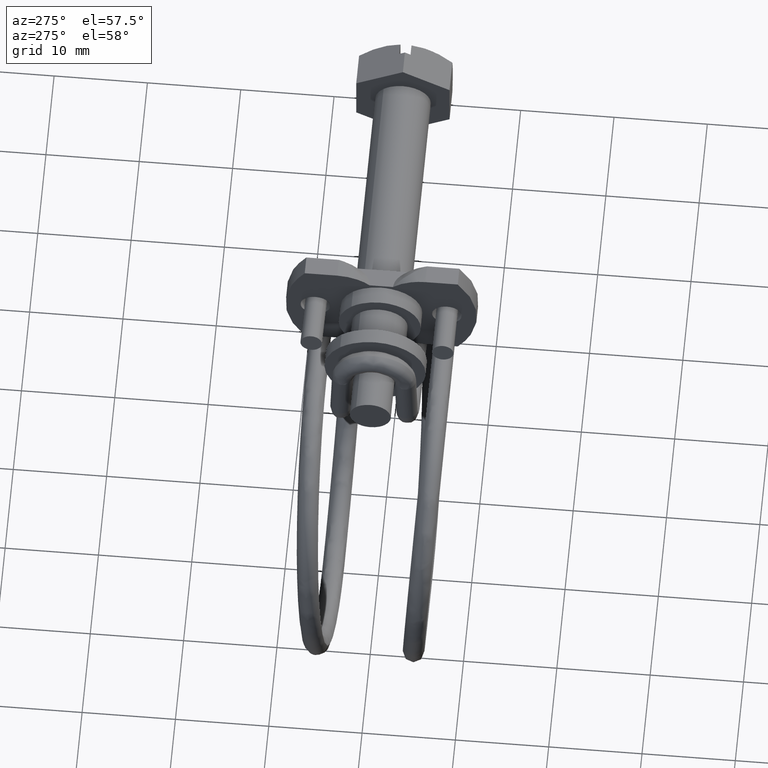
[diagram: clean part render]
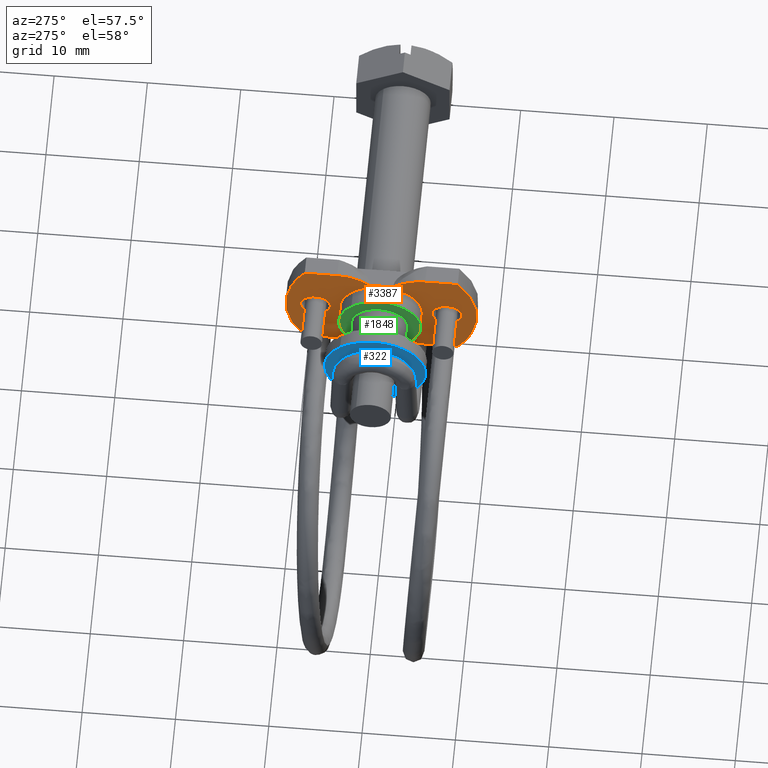
[diagram: same view with three faces highlighted in distinct colors, each labeled with its STEP entity id]
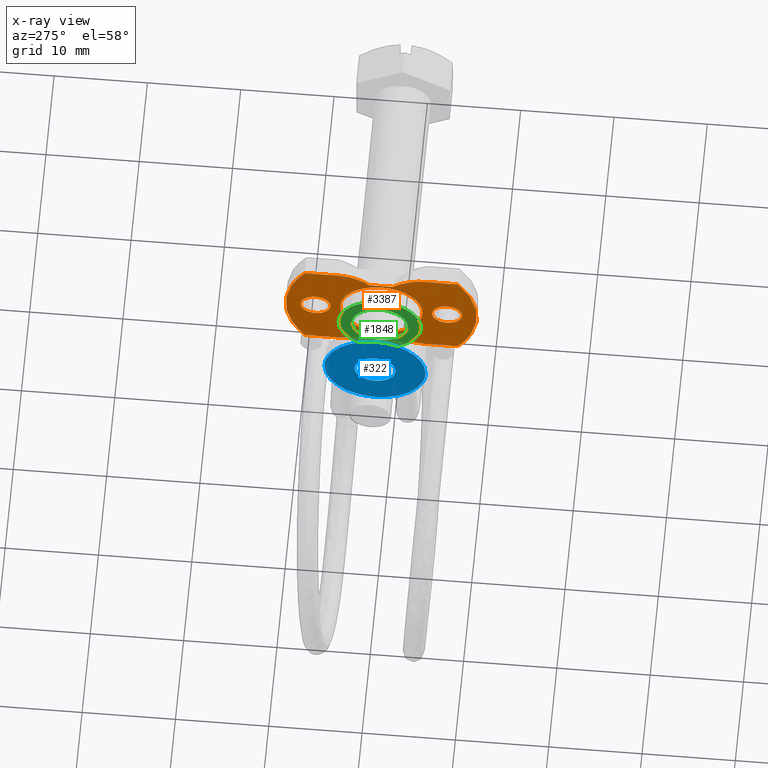
[diagram: x-ray of the same camera — body ghosted, the three highlighted faces saturated]
A machine part, auxiliary view with three faces highlighted in distinct colors.
The next image is the same camera in x-ray (body ghosted, the three faces saturated) — at least one of them is partly hidden behind the body in this view.
Their STEP definitions:

[orange] entity #3387 — the highlighted face is a freeform B-spline surface patch.
#1868=CARTESIAN_POINT('',(-26.500000000008800,3.028759986896684,3.191647047363896));
#1869=VERTEX_POINT('',#1868);
#1875=CARTESIAN_POINT('',(-26.500000000008800,4.399999999990085,-0.000000940716724));
#1876=VERTEX_POINT('',#1875);
#1877=CARTESIAN_POINT('',(-26.500000000008800,3.028759986896684,3.191647047363896));
#1878=CARTESIAN_POINT('',(-26.500000000008811,3.204151414757942,3.025224595690484));
#1879=CARTESIAN_POINT('',(-26.500000000008718,3.564721045001089,2.621630271139714));
#1880=CARTESIAN_POINT('',(-26.500000000008960,3.981661900450574,1.934350126121340));
#1881=CARTESIAN_POINT('',(-26.500000000008772,4.312724401888299,1.041459980738243));
#1882=CARTESIAN_POINT('',(-26.500000000008651,4.400124143302163,0.390585649696691));
#1883=CARTESIAN_POINT('',(-26.500000000008800,4.399999999990085,-0.000000940716724));
#1884=B_SPLINE_CURVE_WITH_KNOTS('',3,(#1877,#1878,#1879,#1880,#1881,#1882,#1883),.UNSPECIFIED.,.F.,.U.,(4,1,1,1,4),(7.585844E-009,0.725351343758357,1.618100974803747,2.399244141282850,3.570968398289390),.UNSPECIFIED.);
#1885=EDGE_CURVE('',#1869,#1876,#1884,.T.);
#1887=CARTESIAN_POINT('',(-26.500000000008800,0.0,-4.399999999990185));
#1888=VERTEX_POINT('',#1887);
#1889=CARTESIAN_POINT('',(-26.500000000008800,4.399999999990085,-0.000000940716724));
#1890=CARTESIAN_POINT('',(-26.500000000008789,4.400032899607744,-0.287978531308636));
#1891=CARTESIAN_POINT('',(-26.500000000008839,4.341502717032039,-0.881932274909092));
#1892=CARTESIAN_POINT('',(-26.500000000008701,4.094973365690760,-1.677038980686903));
#1893=CARTESIAN_POINT('',(-26.500000000009109,3.716334516122697,-2.395963267566721));
#1894=CARTESIAN_POINT('',(-26.500000000008530,3.241941320339942,-3.011617427590196));
#1895=CARTESIAN_POINT('',(-26.500000000008871,2.716716305281558,-3.481780025869578));
#1896=CARTESIAN_POINT('',(-26.500000000008860,2.144842142271191,-3.858840711950128));
#1897=CARTESIAN_POINT('',(-26.500000000008718,1.524276227019057,-4.152371354115200));
#1898=CARTESIAN_POINT('',(-26.500000000008821,0.773937966037745,-4.355048014883253));
#1899=CARTESIAN_POINT('',(-26.500000000008821,0.251980437455539,-4.400020239015968));
#1900=CARTESIAN_POINT('',(-26.500000000008800,0.0,-4.399999999990185));
#1901=B_SPLINE_CURVE_WITH_KNOTS('',3,(#1889,#1890,#1891,#1892,#1893,#1894,#1895,#1896,#1897,#1898,#1899,#1900),.UNSPECIFIED.,.F.,.U.,(4,1,1,1,1,1,1,1,1,4),(0.000000031501568,0.863935043934641,1.781883895370347,2.483846262426276,3.293801798742494,4.103717106462265,4.589694928662183,5.345649831704391,6.155603274940446,6.911546674428889),.UNSPECIFIED.);
#1902=EDGE_CURVE('',#1876,#1888,#1901,.T.);
#1904=CARTESIAN_POINT('',(-26.500000000008800,-3.028759986896684,-3.191647047363897));
#1905=VERTEX_POINT('',#1904);
#1906=CARTESIAN_POINT('',(-26.500000000008800,0.0,-4.399999999990185));
#1907=CARTESIAN_POINT('',(-26.500000000008878,-0.260982352438886,-4.400024897192285));
#1908=CARTESIAN_POINT('',(-26.500000000008729,-0.765542463454386,-4.354978884413694));
#1909=CARTESIAN_POINT('',(-26.500000000008811,-1.423371837625860,-4.179281684623490));
#1910=CARTESIAN_POINT('',(-26.500000000008821,-2.208911031023536,-3.844116367504733));
#1911=CARTESIAN_POINT('',(-26.500000000008800,-2.713370330592687,-3.491239243654235));
#1912=CARTESIAN_POINT('',(-26.500000000008800,-3.028759986896684,-3.191647047363897));
#1913=B_SPLINE_CURVE_WITH_KNOTS('',3,(#1906,#1907,#1908,#1909,#1910,#1911,#1912),.UNSPECIFIED.,.F.,.U.,(4,1,1,1,4),(8.890956E-009,0.782947716419980,1.513708507350673,2.035664010345408,3.340579707109564),.UNSPECIFIED.);
#1914=EDGE_CURVE('',#1888,#1905,#1913,.T.);
#1948=CARTESIAN_POINT('',(-26.500000000008800,-4.399999999990085,0.000000940716723));
#1949=VERTEX_POINT('',#1948);
#1950=CARTESIAN_POINT('',(-26.500000000008800,-3.028759986896684,-3.191647047363897));
#1951=CARTESIAN_POINT('',(-26.500000000008828,-3.258146499820522,-2.974040421692755));
#1952=CARTESIAN_POINT('',(-26.500000000008800,-3.657559027822259,-2.503341712511781));
#1953=CARTESIAN_POINT('',(-26.500000000008690,-4.110154460419578,-1.664179746439416));
#1954=CARTESIAN_POINT('',(-26.500000000009010,-4.352404806914691,-0.818347111734163));
#1955=CARTESIAN_POINT('',(-26.500000000008679,-4.400008357003995,-0.241779850724685));
#1956=CARTESIAN_POINT('',(-26.500000000008800,-4.399999999990085,0.000000940716723));
#1957=B_SPLINE_CURVE_WITH_KNOTS('',3,(#1950,#1951,#1952,#1953,#1954,#1955,#1956),.UNSPECIFIED.,.F.,.U.,(4,1,1,1,4),(7.585737E-009,0.948539171350616,1.841277262789608,2.845616922669429,3.570968398289389),.UNSPECIFIED.);
#1958=EDGE_CURVE('',#1905,#1949,#1957,.T.);
#1960=CARTESIAN_POINT('',(-26.500000000008800,0.0,4.399999999990185));
#1961=VERTEX_POINT('',#1960);
#1962=CARTESIAN_POINT('',(-26.500000000008800,-4.399999999990085,0.000000940716723));
#1963=CARTESIAN_POINT('',(-26.500000000008779,-4.400081568449895,0.359980380307322));
#1964=CARTESIAN_POINT('',(-26.500000000008828,-4.326700315468531,0.953897898677333));
#1965=CARTESIAN_POINT('',(-26.500000000008779,-4.090123385243371,1.655379898595582));
#1966=CARTESIAN_POINT('',(-26.500000000008789,-3.821392259133748,2.206002759256716));
#1967=CARTESIAN_POINT('',(-26.500000000008811,-3.463604558742270,2.748684541794785));
#1968=CARTESIAN_POINT('',(-26.500000000008871,-2.968284426143807,3.275356316320415));
#1969=CARTESIAN_POINT('',(-26.500000000008772,-2.321963479209609,3.767141578125984));
#1970=CARTESIAN_POINT('',(-26.500000000008811,-1.642616899172623,4.109111446655018));
#1971=CARTESIAN_POINT('',(-26.500000000008800,-0.827916810864837,4.345314038121160));
#1972=CARTESIAN_POINT('',(-26.500000000008800,-0.305979314788095,4.400051327864583));
#1973=CARTESIAN_POINT('',(-26.500000000008800,0.0,4.399999999990185));
#1974=B_SPLINE_CURVE_WITH_KNOTS('',3,(#1962,#1963,#1964,#1965,#1966,#1967,#1968,#1969,#1970,#1971,#1972,#1973),.UNSPECIFIED.,.F.,.U.,(4,1,1,1,1,1,1,1,1,4),(0.000000031501409,1.079924314428933,1.781883895370225,2.213856888273993,2.915820241980906,3.725738375762878,4.373704851887441,5.345649831704366,5.993615173859888,6.911546674428891),.UNSPECIFIED.);
#1975=EDGE_CURVE('',#1949,#1961,#1974,.T.);
#1977=CARTESIAN_POINT('',(-26.500000000008800,0.0,4.399999999990185));
#1978=CARTESIAN_POINT('',(-26.500000000008800,0.295782480867849,4.400039197368194));
#1979=CARTESIAN_POINT('',(-26.500000000008811,0.800330139177286,4.348921399375570));
#1980=CARTESIAN_POINT('',(-26.500000000008828,1.522629103739589,4.146803727294562));
#1981=CARTESIAN_POINT('',(-26.500000000008821,2.269509397491111,3.806949062851452));
#1982=CARTESIAN_POINT('',(-26.500000000008711,2.763788507194701,3.443234642343227));
#1983=CARTESIAN_POINT('',(-26.500000000008800,3.028759986896684,3.191647047363896));
#1984=B_SPLINE_CURVE_WITH_KNOTS('',3,(#1977,#1978,#1979,#1980,#1981,#1982,#1983),.UNSPECIFIED.,.F.,.U.,(4,1,1,1,4),(8.891187E-009,0.887342150480602,1.513708507350768,2.244449387908558,3.340579707109564),.UNSPECIFIED.);
#1985=EDGE_CURVE('',#1961,#1869,#1984,.T.);
#2186=CARTESIAN_POINT('',(-26.500000000008850,-5.948632853156509,-1.160598894858176));
#2187=VERTEX_POINT('',#2186);
#2193=CARTESIAN_POINT('',(-26.500000000008850,-7.050000000000209,-1.600000000000000));
#2194=VERTEX_POINT('',#2193);
#2195=CARTESIAN_POINT('',(-26.500000000008850,-7.050000000000209,-1.600000000000000));
#2196=CARTESIAN_POINT('',(-26.500000000008821,-6.860168698248658,-1.600160154317858));
#2197=CARTESIAN_POINT('',(-26.500000000008981,-6.569252695267813,-1.547574619521891));
#2198=CARTESIAN_POINT('',(-26.500000000008729,-6.203149685707785,-1.370322018397640));
#2199=CARTESIAN_POINT('',(-26.500000000008971,-6.031229384924804,-1.239005695770150));
#2200=CARTESIAN_POINT('',(-26.500000000008850,-5.948632853156509,-1.160598894858176));
#2201=B_SPLINE_CURVE_WITH_KNOTS('',3,(#2195,#2196,#2197,#2198,#2199,#2200),.UNSPECIFIED.,.F.,.U.,(4,1,1,4),(8.056008E-009,0.569427146538272,0.873121323871137,1.214777512974135),.UNSPECIFIED.);
#2202=EDGE_CURVE('',#2194,#2187,#2201,.T.);
#2204=CARTESIAN_POINT('',(-26.500000000008850,-8.650000000000025,-0.000000767435905));
#2205=VERTEX_POINT('',#2204);
#2206=CARTESIAN_POINT('',(-26.500000000008850,-8.650000000000025,-0.000000767435905));
#2207=CARTESIAN_POINT('',(-26.500000000008839,-8.650193529757322,-0.202929361377789));
#2208=CARTESIAN_POINT('',(-26.500000000008779,-8.588147642190551,-0.523476184253990));
#2209=CARTESIAN_POINT('',(-26.500000000008960,-8.386316249549228,-0.900941813249145));
#2210=CARTESIAN_POINT('',(-26.500000000008569,-8.166142605000998,-1.162614308678531));
#2211=CARTESIAN_POINT('',(-26.500000000009209,-7.885830312560200,-1.381406533817910));
#2212=CARTESIAN_POINT('',(-26.500000000008079,-7.508109047673190,-1.554414879471664));
#2213=CARTESIAN_POINT('',(-26.500000000009759,-7.213631679580474,-1.600080791476440));
#2214=CARTESIAN_POINT('',(-26.500000000008850,-7.050000000000209,-1.600000000000000));
#2215=B_SPLINE_CURVE_WITH_KNOTS('',3,(#2206,#2207,#2208,#2209,#2210,#2211,#2212,#2213,#2214),.UNSPECIFIED.,.F.,.U.,(4,1,1,1,1,1,4),(0.000000063945013,0.608687857414748,0.962126493370721,1.276260351963763,1.629706367807928,2.022416706817038,2.513289460063777),.UNSPECIFIED.);
#2216=EDGE_CURVE('',#2205,#2194,#2215,.T.);
#2218=CARTESIAN_POINT('',(-26.500000000008850,-8.151367146843910,1.160598894858175));
#2219=VERTEX_POINT('',#2218);
#2220=CARTESIAN_POINT('',(-26.500000000008850,-8.151367146843910,1.160598894858175));
#2221=CARTESIAN_POINT('',(-26.500000000008878,-8.303641807685686,1.016419388434213));
#2222=CARTESIAN_POINT('',(-26.500000000008839,-8.490269466205392,0.751573693889197));
#2223=CARTESIAN_POINT('',(-26.500000000008889,-8.625830514996165,0.338141873170912));
#2224=CARTESIAN_POINT('',(-26.500000000008939,-8.650020570199148,0.114974588548625));
#2225=CARTESIAN_POINT('',(-26.500000000008850,-8.650000000000025,-0.000000767435905));
#2226=B_SPLINE_CURVE_WITH_KNOTS('',3,(#2220,#2221,#2222,#2223,#2224,#2225),.UNSPECIFIED.,.F.,.U.,(4,1,1,4),(0.000000019086482,0.628988349025300,0.953611077847366,1.298534411496406),.UNSPECIFIED.);
#2227=EDGE_CURVE('',#2219,#2205,#2226,.T.);
#2267=CARTESIAN_POINT('',(-26.500000000008850,-7.050000000000209,1.600000000000000));
#2268=VERTEX_POINT('',#2267);
#2269=CARTESIAN_POINT('',(-26.500000000008850,-7.050000000000209,1.600000000000000));
#2270=CARTESIAN_POINT('',(-26.500000000008878,-7.239831756577688,1.600160712187693));
#2271=CARTESIAN_POINT('',(-26.500000000008828,-7.530747398768034,1.547574102777801));
#2272=CARTESIAN_POINT('',(-26.500000000008850,-7.896849829580735,1.370322353023877));
#2273=CARTESIAN_POINT('',(-26.500000000008850,-8.068771146223908,1.239005675128585));
#2274=CARTESIAN_POINT('',(-26.500000000008850,-8.151367146843910,1.160598894858175));
#2275=B_SPLINE_CURVE_WITH_KNOTS('',3,(#2269,#2270,#2271,#2272,#2273,#2274),.UNSPECIFIED.,.F.,.U.,(4,1,1,4),(8.055860E-009,0.569427146538218,0.873121323871127,1.214777512974137),.UNSPECIFIED.);
#2276=EDGE_CURVE('',#2268,#2219,#2275,.T.);
#2278=CARTESIAN_POINT('',(-26.500000000008850,-5.450000000000394,0.000000767435902));
#2279=VERTEX_POINT('',#2278);
#2280=CARTESIAN_POINT('',(-26.500000000008850,-5.450000000000394,0.000000767435902));
#2281=CARTESIAN_POINT('',(-26.500000000008871,-5.449992351869526,0.117804770167064));
#2282=CARTESIAN_POINT('',(-26.500000000008811,-5.481162609022660,0.399257499264479));
#2283=CARTESIAN_POINT('',(-26.500000000008789,-5.631251524205941,0.781414784156688));
#2284=CARTESIAN_POINT('',(-26.500000000008878,-5.860884581067147,1.086950405943475));
#2285=CARTESIAN_POINT('',(-26.500000000008828,-6.111857190763002,1.308888052824770));
#2286=CARTESIAN_POINT('',(-26.500000000008878,-6.345112888606685,1.444829425265019));
#2287=CARTESIAN_POINT('',(-26.500000000008860,-6.663889403454594,1.565555798858186));
#2288=CARTESIAN_POINT('',(-26.500000000008878,-6.886362072789003,1.600089969130111));
#2289=CARTESIAN_POINT('',(-26.500000000008850,-7.050000000000209,1.600000000000000));
#2290=B_SPLINE_CURVE_WITH_KNOTS('',3,(#2280,#2281,#2282,#2283,#2284,#2285,#2286,#2287,#2288,#2289),.UNSPECIFIED.,.F.,.U.,(4,1,1,1,1,1,1,4),(0.000000063946004,0.353422793429116,0.844315709273511,1.217381820661914,1.492252540352802,1.845696632488360,2.022416706817146,2.513289460063773),.UNSPECIFIED.);
#2291=EDGE_CURVE('',#2279,#2268,#2290,.T.);
#2293=CARTESIAN_POINT('',(-26.500000000008850,-5.948632853156509,-1.160598894858176));
#2294=CARTESIAN_POINT('',(-26.500000000008850,-5.801291188502684,-1.021059208619708));
#2295=CARTESIAN_POINT('',(-26.500000000008949,-5.613179662019089,-0.757741075686760));
#2296=CARTESIAN_POINT('',(-26.500000000008711,-5.474894331920205,-0.344909246045748));
#2297=CARTESIAN_POINT('',(-26.500000000008960,-5.449982436287293,-0.114974235987259));
#2298=CARTESIAN_POINT('',(-26.500000000008850,-5.450000000000394,0.000000767435902));
#2299=B_SPLINE_CURVE_WITH_KNOTS('',3,(#2293,#2294,#2295,#2296,#2297,#2298),.UNSPECIFIED.,.F.,.U.,(4,1,1,4),(0.000000019087000,0.608690493277893,0.953611077847472,1.298534411496399),.UNSPECIFIED.);
#2300=EDGE_CURVE('',#2187,#2279,#2299,.T.);
#2386=CARTESIAN_POINT('',(-26.500000000008850,8.151367146843800,-1.160598894858176));
#2387=VERTEX_POINT('',#2386);
#2393=CARTESIAN_POINT('',(-26.500000000008850,7.050000000000099,-1.600000000000000));
#2394=VERTEX_POINT('',#2393);
#2395=CARTESIAN_POINT('',(-26.500000000008850,7.050000000000099,-1.600000000000000));
#2396=CARTESIAN_POINT('',(-26.500000000008900,7.214501915978561,-1.600067413213674));
#2397=CARTESIAN_POINT('',(-26.500000000008779,7.505498052526168,-1.554728712897016));
#2398=CARTESIAN_POINT('',(-26.500000000008949,7.876630959771331,-1.385790558520576));
#2399=CARTESIAN_POINT('',(-26.500000000008750,8.068770094024078,-1.239001081573425));
#2400=CARTESIAN_POINT('',(-26.500000000008850,8.151367146843800,-1.160598894858176));
#2401=B_SPLINE_CURVE_WITH_KNOTS('',3,(#2395,#2396,#2397,#2398,#2399,#2400),.UNSPECIFIED.,.F.,.U.,(4,1,1,4),(8.055607E-009,0.493503612442936,0.873121323871076,1.214777512974136),.UNSPECIFIED.);
#2402=EDGE_CURVE('',#2394,#2387,#2401,.T.);
#2404=CARTESIAN_POINT('',(-26.500000000008850,5.450000000000284,-0.000000767435905));
#2405=VERTEX_POINT('',#2404);
#2406=CARTESIAN_POINT('',(-26.500000000008850,5.450000000000284,-0.000000767435905));
#2407=CARTESIAN_POINT('',(-26.500000000008878,5.449801912928033,-0.202919082505945));
#2408=CARTESIAN_POINT('',(-26.500000000008779,5.520692693748371,-0.569306357693884));
#2409=CARTESIAN_POINT('',(-26.500000000008860,5.763289374723247,-0.979764358344474));
#2410=CARTESIAN_POINT('',(-26.500000000008878,6.014491898325827,-1.230825361849884));
#2411=CARTESIAN_POINT('',(-26.500000000008779,6.267860706853892,-1.406979799250967));
#2412=CARTESIAN_POINT('',(-26.500000000009010,6.604980363127232,-1.556435759283591));
#2413=CARTESIAN_POINT('',(-26.500000000008772,6.886367546329806,-1.600084375782348));
#2414=CARTESIAN_POINT('',(-26.500000000008850,7.050000000000099,-1.600000000000000));
#2415=B_SPLINE_CURVE_WITH_KNOTS('',3,(#2406,#2407,#2408,#2409,#2410,#2411,#2412,#2413,#2414),.UNSPECIFIED.,.F.,.U.,(4,1,1,1,1,1,4),(0.000000063946139,0.608687857415501,1.099578880085099,1.413711782423102,1.668976290456149,2.022416706817215,2.513289460063776),.UNSPECIFIED.);
#2416=EDGE_CURVE('',#2405,#2394,#2415,.T.);
#2418=CARTESIAN_POINT('',(-26.500000000008850,5.948632853156400,1.160598894858175));
#2419=VERTEX_POINT('',#2418);
#2420=CARTESIAN_POINT('',(-26.500000000008850,5.948632853156400,1.160598894858175));
#2421=CARTESIAN_POINT('',(-26.500000000008850,5.855408441143307,1.072161408670205));
#2422=CARTESIAN_POINT('',(-26.500000000008800,5.673023282040207,0.851689403493316));
#2423=CARTESIAN_POINT('',(-26.500000000008939,5.492736632340646,0.453121944654658));
#2424=CARTESIAN_POINT('',(-26.500000000008939,5.449948980666449,0.148792622261755));
#2425=CARTESIAN_POINT('',(-26.500000000008850,5.450000000000284,-0.000000767435905));
#2426=B_SPLINE_CURVE_WITH_KNOTS('',3,(#2420,#2421,#2422,#2423,#2424,#2425),.UNSPECIFIED.,.F.,.U.,(4,1,1,4),(0.000000019087120,0.385503251423358,0.852159537052213,1.298534411496402),.UNSPECIFIED.);
#2427=EDGE_CURVE('',#2419,#2405,#2426,.T.);
#2467=CARTESIAN_POINT('',(-26.500000000008850,7.050000000000099,1.600000000000000));
#2468=VERTEX_POINT('',#2467);
#2469=CARTESIAN_POINT('',(-26.500000000008850,7.050000000000099,1.600000000000000));
#2470=CARTESIAN_POINT('',(-26.500000000008850,6.936115445481941,1.600018428773048));
#2471=CARTESIAN_POINT('',(-26.500000000008889,6.721016042179210,1.576930364059102));
#2472=CARTESIAN_POINT('',(-26.500000000008761,6.333442289694800,1.453494653472417));
#2473=CARTESIAN_POINT('',(-26.500000000009031,6.086220443701282,1.291387480889143));
#2474=CARTESIAN_POINT('',(-26.500000000008850,5.948632853156400,1.160598894858175));
#2475=B_SPLINE_CURVE_WITH_KNOTS('',3,(#2469,#2470,#2471,#2472,#2473,#2474),.UNSPECIFIED.,.F.,.U.,(4,1,1,4),(8.055946E-009,0.341656197162004,0.645350374515808,1.214777512974136),.UNSPECIFIED.);
#2476=EDGE_CURVE('',#2468,#2419,#2475,.T.);
#2478=CARTESIAN_POINT('',(-26.500000000008850,8.649999999999915,0.000000767435901));
#2479=VERTEX_POINT('',#2478);
#2480=CARTESIAN_POINT('',(-26.500000000008850,8.649999999999915,0.000000767435901));
#2481=CARTESIAN_POINT('',(-26.500000000008850,8.650184361823007,0.202920681089043));
#2482=CARTESIAN_POINT('',(-26.500000000008839,8.583109116752784,0.549664848988881));
#2483=CARTESIAN_POINT('',(-26.500000000008900,8.348659969577232,0.963408455848365));
#2484=CARTESIAN_POINT('',(-26.500000000008850,8.083416403740067,1.238581015843715));
#2485=CARTESIAN_POINT('',(-26.500000000008779,7.775753981079886,1.441445511524632));
#2486=CARTESIAN_POINT('',(-26.500000000009042,7.429603894333088,1.570105408586509));
#2487=CARTESIAN_POINT('',(-26.500000000008640,7.174354093834654,1.600021381314283));
#2488=CARTESIAN_POINT('',(-26.500000000008850,7.050000000000099,1.600000000000000));
#2489=B_SPLINE_CURVE_WITH_KNOTS('',3,(#2480,#2481,#2482,#2483,#2484,#2485,#2486,#2487,#2488),.UNSPECIFIED.,.F.,.U.,(4,1,1,1,1,1,4),(0.000000063945701,0.608687857415259,1.040661953742249,1.413711782422992,1.747517537597761,2.140227876427726,2.513289460063772),.UNSPECIFIED.);
#2490=EDGE_CURVE('',#2479,#2468,#2489,.T.);
#2492=CARTESIAN_POINT('',(-26.500000000008850,8.151367146843800,-1.160598894858176));
#2493=CARTESIAN_POINT('',(-26.500000000008800,8.259341559109297,-1.058217403767299));
#2494=CARTESIAN_POINT('',(-26.500000000008878,8.420826117572027,-0.855086451820974));
#2495=CARTESIAN_POINT('',(-26.500000000008821,8.602685938716887,-0.459833295761106));
#2496=CARTESIAN_POINT('',(-26.500000000008800,8.650101045964640,-0.175856938417581));
#2497=CARTESIAN_POINT('',(-26.500000000008850,8.649999999999915,0.000000767435901));
#2498=B_SPLINE_CURVE_WITH_KNOTS('',3,(#2492,#2493,#2494,#2495,#2496,#2497),.UNSPECIFIED.,.F.,.U.,(4,1,1,4),(0.000000019086997,0.446374893507909,0.771000367323257,1.298534411496396),.UNSPECIFIED.);
#2499=EDGE_CURVE('',#2387,#2479,#2498,.T.);
#2566=CARTESIAN_POINT('',(-26.500000000008850,1.249999999999754,-4.699999999999910));
#2567=VERTEX_POINT('',#2566);
#2662=CARTESIAN_POINT('',(-26.500000000008850,-1.249999999999742,4.700000000000070));
#2663=VERTEX_POINT('',#2662);
#2771=CARTESIAN_POINT('',(-26.500000000008850,-1.249999999999760,-4.699999999999920));
#2772=VERTEX_POINT('',#2771);
#2866=CARTESIAN_POINT('',(-26.500000000008850,1.249999999999744,4.700000000000070));
#2867=VERTEX_POINT('',#2866);
#3030=CARTESIAN_POINT('',(-26.500000000008850,-8.200000000000001,6.149999999999910));
#3031=VERTEX_POINT('',#3030);
#3037=CARTESIAN_POINT('',(-26.500000000008850,-8.200000000000150,-6.149999999999810));
#3038=VERTEX_POINT('',#3037);
#3039=CARTESIAN_POINT('',(-26.500000000008850,-8.200000000000001,6.149999999999910));
#3040=CARTESIAN_POINT('',(-26.500000000008900,-8.571077225141750,5.655346842435552));
#3041=CARTESIAN_POINT('',(-26.500000000008729,-9.032991010740979,4.906796473241601));
#3042=CARTESIAN_POINT('',(-26.500000000009049,-9.635194582644434,3.575599030659983));
#3043=CARTESIAN_POINT('',(-26.500000000008701,-10.039815299049421,2.275163710484211));
#3044=CARTESIAN_POINT('',(-26.500000000008889,-10.250044755901230,0.791348073476811));
#3045=CARTESIAN_POINT('',(-26.500000000009159,-10.259229959575970,-0.430205255181141));
#3046=CARTESIAN_POINT('',(-26.500000000008502,-10.146083164970610,-1.611205803567593));
#3047=CARTESIAN_POINT('',(-26.500000000009511,-9.846622452146479,-3.008702830406271));
#3048=CARTESIAN_POINT('',(-26.500000000008878,-9.215466502103364,-4.614216106797644));
#3049=CARTESIAN_POINT('',(-26.500000000008811,-8.560751506359409,-5.669077004928341));
#3050=CARTESIAN_POINT('',(-26.500000000008850,-8.200000000000150,-6.149999999999810));
#3051=B_SPLINE_CURVE_WITH_KNOTS('',3,(#3039,#3040,#3041,#3042,#3043,#3044,#3045,#3046,#3047,#3048,#3049,#3050),.UNSPECIFIED.,.F.,.U.,(4,1,1,1,1,1,1,1,1,4),(0.000000018593697,1.855089871270039,2.628048975177300,4.380091391099738,5.926005081910660,7.111182603423862,8.038738281650305,9.481595098571136,11.388222944713760,13.191786622319540),.UNSPECIFIED.);
#3052=EDGE_CURVE('',#3031,#3038,#3051,.T.);
#3069=CARTESIAN_POINT('',(-26.500000000008850,-4.725000000000000,-6.149999999999890));
#3070=VERTEX_POINT('',#3069);
#3071=CARTESIAN_POINT('',(-26.500000000008850,-4.725000000000000,-6.149999999999890));
#3072=CARTESIAN_POINT('',(-26.500000000008850,-8.200000000000150,-6.149999999999810));
#3073=QUASI_UNIFORM_CURVE('',1,(#3071,#3072),.UNSPECIFIED.,.F.,.U.);
#3074=EDGE_CURVE('',#3070,#3038,#3073,.T.);
#3098=CARTESIAN_POINT('',(-26.500000000008850,-4.725000000000000,-6.149999999999890));
#3099=CARTESIAN_POINT('',(-26.500000000008900,-4.261952172757567,-6.150180041539859));
#3100=CARTESIAN_POINT('',(-26.500000000008789,-3.476927259099697,-6.037598281067974));
#3101=CARTESIAN_POINT('',(-26.500000000008949,-2.482402582969502,-5.636916279876871));
#3102=CARTESIAN_POINT('',(-26.500000000008640,-1.784128693805581,-5.191047371927247));
#3103=CARTESIAN_POINT('',(-26.500000000008900,-1.405766271026387,-4.857403157502039));
#3104=CARTESIAN_POINT('',(-26.500000000008850,-1.249999999999760,-4.699999999999920));
#3105=B_SPLINE_CURVE_WITH_KNOTS('',3,(#3098,#3099,#3100,#3101,#3102,#3103,#3104),.UNSPECIFIED.,.F.,.U.,(4,1,1,1,4),(7.409565E-009,1.389092354704244,2.355407029649388,3.200945905873581,3.865292830263130),.UNSPECIFIED.);
#3106=EDGE_CURVE('',#3070,#2772,#3105,.T.);
#3120=CARTESIAN_POINT('',(-26.500000000008850,1.249999999999754,-4.699999999999910));
#3121=CARTESIAN_POINT('',(-26.500000000008850,-1.249999999999760,-4.699999999999920));
#3122=QUASI_UNIFORM_CURVE('',1,(#3120,#3121),.UNSPECIFIED.,.F.,.U.);
#3123=EDGE_CURVE('',#2567,#2772,#3122,.T.);
#3143=CARTESIAN_POINT('',(-26.500000000008850,4.725000000000000,-6.149999999999810));
#3144=VERTEX_POINT('',#3143);
#3151=CARTESIAN_POINT('',(-26.500000000008850,1.249999999999754,-4.699999999999910));
#3152=CARTESIAN_POINT('',(-26.500000000008860,1.519006362168325,-4.971932636653983));
#3153=CARTESIAN_POINT('',(-26.500000000008811,2.105436226434606,-5.439490363744508));
#3154=CARTESIAN_POINT('',(-26.500000000008889,2.964865735610609,-5.849069679278673));
#3155=CARTESIAN_POINT('',(-26.500000000008800,3.839229301254248,-6.092681713842807));
#3156=CARTESIAN_POINT('',(-26.500000000009020,4.382758652496253,-6.150045479052248));
#3157=CARTESIAN_POINT('',(-26.500000000008850,4.725000000000000,-6.149999999999810));
#3158=B_SPLINE_CURVE_WITH_KNOTS('',3,(#3151,#3152,#3153,#3154,#3155,#3156,#3157),.UNSPECIFIED.,.F.,.U.,(4,1,1,1,4),(7.410061E-009,1.147510328741846,2.234614744865467,2.838573693179765,3.865292830263123),.UNSPECIFIED.);
#3159=EDGE_CURVE('',#2567,#3144,#3158,.T.);
#3171=CARTESIAN_POINT('',(-26.500000000008850,8.200000000000141,-6.149999999999810));
#3172=VERTEX_POINT('',#3171);
#3173=CARTESIAN_POINT('',(-26.500000000008850,8.200000000000141,-6.149999999999810));
#3174=CARTESIAN_POINT('',(-26.500000000008850,4.725000000000000,-6.149999999999810));
#3175=QUASI_UNIFORM_CURVE('',1,(#3173,#3174),.UNSPECIFIED.,.F.,.U.);
#3176=EDGE_CURVE('',#3172,#3144,#3175,.T.);
#3202=CARTESIAN_POINT('',(-26.500000000008850,8.200000000000101,6.150000000000090));
#3203=VERTEX_POINT('',#3202);
#3204=CARTESIAN_POINT('',(-26.500000000008850,8.200000000000141,-6.149999999999810));
#3205=CARTESIAN_POINT('',(-26.500000000008718,8.653580636851572,-5.545449335244956));
#3206=CARTESIAN_POINT('',(-26.500000000009159,9.303088318591396,-4.443807392035538));
#3207=CARTESIAN_POINT('',(-26.500000000008491,9.900396189570460,-2.791420495221988));
#3208=CARTESIAN_POINT('',(-26.500000000008921,10.182411382393729,-1.407881089111015));
#3209=CARTESIAN_POINT('',(-26.500000000008761,10.292587553685440,0.154178253655787));
#3210=CARTESIAN_POINT('',(-26.500000000009258,10.144022808352350,1.839066400576665));
#3211=CARTESIAN_POINT('',(-26.500000000008839,9.686706253856206,3.465866342897476));
#3212=CARTESIAN_POINT('',(-26.500000000009269,9.044867259075460,4.894223361929855));
#3213=CARTESIAN_POINT('',(-26.500000000008470,8.529826482500212,5.710299076386430));
#3214=CARTESIAN_POINT('',(-26.500000000008850,8.200000000000101,6.150000000000090));
#3215=B_SPLINE_CURVE_WITH_KNOTS('',3,(#3204,#3205,#3206,#3207,#3208,#3209,#3210,#3211,#3212,#3213,#3214),.UNSPECIFIED.,.F.,.U.,(4,1,1,1,1,1,1,1,4),(0.000000018588985,2.267333022241942,3.813253638827186,5.256110285886966,6.492838722205454,8.502517266683642,10.306084846290361,11.542821666736780,13.191786622319681),.UNSPECIFIED.);
#3216=EDGE_CURVE('',#3172,#3203,#3215,.T.);
#3233=CARTESIAN_POINT('',(-26.500000000008850,4.725000000000000,6.150000000000000));
#3234=VERTEX_POINT('',#3233);
#3235=CARTESIAN_POINT('',(-26.500000000008850,4.725000000000000,6.150000000000000));
#3236=CARTESIAN_POINT('',(-26.500000000008850,8.200000000000101,6.150000000000090));
#3237=QUASI_UNIFORM_CURVE('',1,(#3235,#3236),.UNSPECIFIED.,.F.,.U.);
#3238=EDGE_CURVE('',#3234,#3203,#3237,.T.);
#3262=CARTESIAN_POINT('',(-26.500000000008850,4.725000000000000,6.150000000000000));
#3263=CARTESIAN_POINT('',(-26.500000000008900,4.382760083910450,6.150048913651792));
#3264=CARTESIAN_POINT('',(-26.500000000008828,3.758699225858530,6.084198286051868));
#3265=CARTESIAN_POINT('',(-26.500000000008860,2.811733788610704,5.794958968352227));
#3266=CARTESIAN_POINT('',(-26.500000000008871,1.973581216506762,5.343438681963685));
#3267=CARTESIAN_POINT('',(-26.500000000008811,1.462396419438559,4.914651635835097));
#3268=CARTESIAN_POINT('',(-26.500000000008850,1.249999999999744,4.700000000000070));
#3269=B_SPLINE_CURVE_WITH_KNOTS('',3,(#3262,#3263,#3264,#3265,#3266,#3267,#3268),.UNSPECIFIED.,.F.,.U.,(4,1,1,1,4),(7.409658E-009,1.026719144493095,1.872254654988800,2.959365555919840,3.865292830263144),.UNSPECIFIED.);
#3270=EDGE_CURVE('',#3234,#2867,#3269,.T.);
#3284=CARTESIAN_POINT('',(-26.500000000008850,-1.249999999999742,4.700000000000070));
#3285=CARTESIAN_POINT('',(-26.500000000008850,1.249999999999744,4.700000000000070));
#3286=QUASI_UNIFORM_CURVE('',1,(#3284,#3285),.UNSPECIFIED.,.F.,.U.);
#3287=EDGE_CURVE('',#2663,#2867,#3286,.T.);
#3307=CARTESIAN_POINT('',(-26.500000000008850,-4.725000000000000,6.150000000000000));
#3308=VERTEX_POINT('',#3307);
#3315=CARTESIAN_POINT('',(-26.500000000008850,-1.249999999999742,4.700000000000070));
#3316=CARTESIAN_POINT('',(-26.500000000008850,-1.575585200503401,5.029261243184514));
#3317=CARTESIAN_POINT('',(-26.500000000008900,-2.142970711104480,5.458903366964021));
#3318=CARTESIAN_POINT('',(-26.500000000008800,-3.004485901094113,5.856414536125992));
#3319=CARTESIAN_POINT('',(-26.500000000008910,-3.798964992052620,6.088430221973808));
#3320=CARTESIAN_POINT('',(-26.500000000008821,-4.382757199236910,6.150057336855587));
#3321=CARTESIAN_POINT('',(-26.500000000008850,-4.725000000000000,6.150000000000000));
#3322=B_SPLINE_CURVE_WITH_KNOTS('',3,(#3315,#3316,#3317,#3318,#3319,#3320,#3321),.UNSPECIFIED.,.F.,.U.,(4,1,1,1,4),(7.409420E-009,1.389092354704345,2.113824786293331,2.838573693179654,3.865292830263151),.UNSPECIFIED.);
#3323=EDGE_CURVE('',#2663,#3308,#3322,.T.);
#3335=CARTESIAN_POINT('',(-26.500000000008850,-8.200000000000001,6.149999999999910));
#3336=CARTESIAN_POINT('',(-26.500000000008850,-4.725000000000000,6.150000000000000));
#3337=QUASI_UNIFORM_CURVE('',1,(#3335,#3336),.UNSPECIFIED.,.F.,.U.);
#3338=EDGE_CURVE('',#3031,#3308,#3337,.T.);
#3344=CARTESIAN_POINT('',(-26.500000000008800,-11.273973282876760,6.764384976160303));
#3345=CARTESIAN_POINT('',(-26.500000000008800,11.273984646502290,6.764384976160303));
#3346=CARTESIAN_POINT('',(-26.500000000008800,-11.273973282876760,-6.764385306071812));
#3347=CARTESIAN_POINT('',(-26.500000000008800,11.273984646502290,-6.764385306071812));
#3348=B_SPLINE_SURFACE_WITH_KNOTS('',1,1,((#3344,#3346),(#3345,#3347)),.UNSPECIFIED.,.F.,.F.,.U.,(2,2),(2,2),(0.0,22.547957929379049),(0.0,13.528770282232120),.UNSPECIFIED.);
#3349=ORIENTED_EDGE('',*,*,#3338,.T.);
#3350=ORIENTED_EDGE('',*,*,#3323,.F.);
#3351=ORIENTED_EDGE('',*,*,#3287,.T.);
#3352=ORIENTED_EDGE('',*,*,#3270,.F.);
#3353=ORIENTED_EDGE('',*,*,#3238,.T.);
#3354=ORIENTED_EDGE('',*,*,#3216,.F.);
#3355=ORIENTED_EDGE('',*,*,#3176,.T.);
#3356=ORIENTED_EDGE('',*,*,#3159,.F.);
#3357=ORIENTED_EDGE('',*,*,#3123,.T.);
#3358=ORIENTED_EDGE('',*,*,#3106,.F.);
#3359=ORIENTED_EDGE('',*,*,#3074,.T.);
#3360=ORIENTED_EDGE('',*,*,#3052,.F.);
#3361=EDGE_LOOP('',(#3349,#3350,#3351,#3352,#3353,#3354,#3355,#3356,#3357,#3358,#3359,#3360));
#3362=FACE_OUTER_BOUND('',#3361,.T.);
#3363=ORIENTED_EDGE('',*,*,#2416,.T.);
#3364=ORIENTED_EDGE('',*,*,#2402,.T.);
#3365=ORIENTED_EDGE('',*,*,#2499,.T.);
#3366=ORIENTED_EDGE('',*,*,#2490,.T.);
#3367=ORIENTED_EDGE('',*,*,#2476,.T.);
#3368=ORIENTED_EDGE('',*,*,#2427,.T.);
#3369=EDGE_LOOP('',(#3363,#3364,#3365,#3366,#3367,#3368));
#3370=FACE_BOUND('',#3369,.T.);
#3371=ORIENTED_EDGE('',*,*,#2216,.T.);
#3372=ORIENTED_EDGE('',*,*,#2202,.T.);
#3373=ORIENTED_EDGE('',*,*,#2300,.T.);
#3374=ORIENTED_EDGE('',*,*,#2291,.T.);
#3375=ORIENTED_EDGE('',*,*,#2276,.T.);
#3376=ORIENTED_EDGE('',*,*,#2227,.T.);
#3377=EDGE_LOOP('',(#3371,#3372,#3373,#3374,#3375,#3376));
#3378=FACE_BOUND('',#3377,.T.);
#3379=ORIENTED_EDGE('',*,*,#1902,.F.);
#3380=ORIENTED_EDGE('',*,*,#1885,.F.);
#3381=ORIENTED_EDGE('',*,*,#1985,.F.);
#3382=ORIENTED_EDGE('',*,*,#1975,.F.);
#3383=ORIENTED_EDGE('',*,*,#1958,.F.);
#3384=ORIENTED_EDGE('',*,*,#1914,.F.);
#3385=EDGE_LOOP('',(#3379,#3380,#3381,#3382,#3383,#3384));
#3386=FACE_BOUND('',#3385,.T.);
#3387=ADVANCED_FACE('',(#3362,#3370,#3378,#3386),#3348,.T.);

[blue] entity #322 — the highlighted face is a freeform B-spline surface patch.
#107=CARTESIAN_POINT('',(-34.100000000000001,1.514379959183211,1.595823490408484));
#108=VERTEX_POINT('',#107);
#114=CARTESIAN_POINT('',(-34.100000000000001,2.199999999999701,-0.000000661528465));
#115=VERTEX_POINT('',#114);
#116=CARTESIAN_POINT('',(-34.100000000000001,1.514379959183211,1.595823490408484));
#117=CARTESIAN_POINT('',(-34.099999999999952,1.703411703483307,1.416714164888794));
#118=CARTESIAN_POINT('',(-34.100000000000051,1.966157183641054,1.058841341078812));
#119=CARTESIAN_POINT('',(-34.099999999999973,2.163767160649535,0.492854200094939));
#120=CARTESIAN_POINT('',(-34.100000000000037,2.200024646862579,0.158088858464474));
#121=CARTESIAN_POINT('',(-34.100000000000001,2.199999999999701,-0.000000661528465));
#122=B_SPLINE_CURVE_WITH_KNOTS('',3,(#116,#117,#118,#119,#120,#121),.UNSPECIFIED.,.F.,.U.,(4,1,1,4),(0.000000018194270,0.781158033801869,1.311214498179360,1.785484372907067),.UNSPECIFIED.);
#123=EDGE_CURVE('',#108,#115,#122,.T.);
#125=CARTESIAN_POINT('',(-34.100000000000001,0.0,-2.199999999999800));
#126=VERTEX_POINT('',#125);
#127=CARTESIAN_POINT('',(-34.100000000000001,2.199999999999701,-0.000000661528465));
#128=CARTESIAN_POINT('',(-34.099999999999973,2.200023018656671,-0.161989088131241));
#129=CARTESIAN_POINT('',(-34.100000000000030,2.162083304792103,-0.503963367934303));
#130=CARTESIAN_POINT('',(-34.100000000000037,2.003247436268589,-0.947900851457866));
#131=CARTESIAN_POINT('',(-34.100000000000037,1.780501213119395,-1.309302841709989));
#132=CARTESIAN_POINT('',(-34.099999999999973,1.489544827913058,-1.642540264022557));
#133=CARTESIAN_POINT('',(-34.100000000000009,1.132136138031135,-1.907611225867934));
#134=CARTESIAN_POINT('',(-34.100000000000108,0.611853328900671,-2.138214221058786));
#135=CARTESIAN_POINT('',(-34.099999999999767,0.243008114825401,-2.200146028818943));
#136=CARTESIAN_POINT('',(-34.100000000000001,0.0,-2.199999999999800));
#137=B_SPLINE_CURVE_WITH_KNOTS('',3,(#127,#128,#129,#130,#131,#132,#133,#134,#135,#136),.UNSPECIFIED.,.F.,.U.,(4,1,1,1,1,1,1,4),(0.000000063777290,0.485967127486859,1.025933923127010,1.403921391402702,1.754865551859576,2.348844016928481,2.726824632328182,3.455773229478742),.UNSPECIFIED.);
#138=EDGE_CURVE('',#115,#126,#137,.T.);
#140=CARTESIAN_POINT('',(-34.100000000000001,-1.514379959183213,-1.595823490408485));
#141=VERTEX_POINT('',#140);
#142=CARTESIAN_POINT('',(-34.100000000000001,0.0,-2.199999999999800));
#143=CARTESIAN_POINT('',(-34.100000000000058,-0.234900202132905,-2.200137466038053));
#144=CARTESIAN_POINT('',(-34.099999999999959,-0.634983524016909,-2.135274872217238));
#145=CARTESIAN_POINT('',(-34.100000000000072,-1.143571163541839,-1.900151951835968));
#146=CARTESIAN_POINT('',(-34.099999999999980,-1.400807855505969,-1.703627266393867));
#147=CARTESIAN_POINT('',(-34.100000000000001,-1.514379959183213,-1.595823490408485));
#148=B_SPLINE_CURVE_WITH_KNOTS('',3,(#142,#143,#144,#145,#146,#147),.UNSPECIFIED.,.F.,.U.,(4,1,1,4),(0.000000014777963,0.704654160894666,1.200519801781948,1.670289833490086),.UNSPECIFIED.);
#149=EDGE_CURVE('',#126,#141,#148,.T.);
#183=CARTESIAN_POINT('',(-34.100000000000001,-2.199999999999701,0.000000661528458));
#184=VERTEX_POINT('',#183);
#185=CARTESIAN_POINT('',(-34.100000000000001,-1.514379959183213,-1.595823490408485));
#186=CARTESIAN_POINT('',(-34.099999999999959,-1.676360876516732,-1.442264852043363));
#187=CARTESIAN_POINT('',(-34.099999999999902,-1.906727864635053,-1.144752498200748));
#188=CARTESIAN_POINT('',(-34.100000000000257,-2.142879757857931,-0.595097504497679));
#189=CARTESIAN_POINT('',(-34.099999999999760,-2.200116716243847,-0.223198178741919));
#190=CARTESIAN_POINT('',(-34.100000000000001,-2.199999999999701,0.000000661528458));
#191=B_SPLINE_CURVE_WITH_KNOTS('',3,(#185,#186,#187,#188,#189,#190),.UNSPECIFIED.,.F.,.U.,(4,1,1,4),(0.000000018194110,0.669556944794502,1.115927446296025,1.785484372907063),.UNSPECIFIED.);
#192=EDGE_CURVE('',#141,#184,#191,.T.);
#194=CARTESIAN_POINT('',(-34.100000000000001,0.0,2.199999999999800));
#195=VERTEX_POINT('',#194);
#196=CARTESIAN_POINT('',(-34.100000000000001,-2.199999999999701,0.000000661528458));
#197=CARTESIAN_POINT('',(-34.099999999999987,-2.200150403733067,0.243007196215258));
#198=CARTESIAN_POINT('',(-34.100000000000072,-2.135199432241457,0.629857336940438));
#199=CARTESIAN_POINT('',(-34.099999999999952,-1.897950281386746,1.147838501331370));
#200=CARTESIAN_POINT('',(-34.100000000000072,-1.623425674792847,1.508626003992164));
#201=CARTESIAN_POINT('',(-34.099999999999973,-1.267752477541758,1.815413295835303));
#202=CARTESIAN_POINT('',(-34.100000000000151,-0.929008046921252,2.007316871905167));
#203=CARTESIAN_POINT('',(-34.099999999999952,-0.494925111186877,2.159622919355531));
#204=CARTESIAN_POINT('',(-34.100000000000030,-0.197993215723643,2.200064367402263));
#205=CARTESIAN_POINT('',(-34.100000000000001,0.0,2.199999999999800));
#206=B_SPLINE_CURVE_WITH_KNOTS('',3,(#196,#197,#198,#199,#200,#201,#202,#203,#204,#205),.UNSPECIFIED.,.F.,.U.,(4,1,1,1,1,1,1,4),(0.000000063778707,0.728948912053237,1.160926577859295,1.700907587766935,2.078862518039743,2.564831328265736,2.861819269033844,3.455773229478739),.UNSPECIFIED.);
#207=EDGE_CURVE('',#184,#195,#206,.T.);
#209=CARTESIAN_POINT('',(-34.100000000000001,0.0,2.199999999999800));
#210=CARTESIAN_POINT('',(-34.100000000000051,0.156591644336911,2.200026968004286));
#211=CARTESIAN_POINT('',(-34.099999999999902,0.443655510882314,2.169215661738114));
#212=CARTESIAN_POINT('',(-34.100000000000072,0.827171850176826,2.049531005090650));
#213=CARTESIAN_POINT('',(-34.099999999999987,1.185272523830336,1.868266767616454));
#214=CARTESIAN_POINT('',(-34.100000000000001,1.400810296117759,1.703632027404960));
#215=CARTESIAN_POINT('',(-34.100000000000001,1.514379959183211,1.595823490408484));
#216=B_SPLINE_CURVE_WITH_KNOTS('',3,(#209,#210,#211,#212,#213,#214,#215),.UNSPECIFIED.,.F.,.U.,(4,1,1,1,4),(0.000000014777936,0.469770046499461,0.861233799376847,1.200519801781952,1.670289833490085),.UNSPECIFIED.);
#217=EDGE_CURVE('',#195,#108,#216,.T.);
#223=CARTESIAN_POINT('',(-34.100000000000001,-5.966957478970576,5.966957478970596));
#224=CARTESIAN_POINT('',(-34.100000000000001,-5.966957478970576,-5.966957769990272));
#225=CARTESIAN_POINT('',(-34.100000000000001,5.966957769990255,5.966957478970596));
#226=CARTESIAN_POINT('',(-34.100000000000001,5.966957769990255,-5.966957769990272));
#227=B_SPLINE_SURFACE_WITH_KNOTS('',1,1,((#223,#225),(#224,#226)),.UNSPECIFIED.,.F.,.F.,.U.,(2,2),(2,2),(0.0,11.933915248960870),(0.0,11.933915248960830),.UNSPECIFIED.);
#228=CARTESIAN_POINT('',(-34.100000000000001,0.0,5.425000000000000));
#229=VERTEX_POINT('',#228);
#230=CARTESIAN_POINT('',(-34.099999999997628,3.734323521510579,3.935155866802397));
#231=VERTEX_POINT('',#230);
#232=CARTESIAN_POINT('',(-34.100000000000001,0.0,5.425000000000000));
#233=CARTESIAN_POINT('',(-34.099999999999717,0.386141536537708,5.425072956006825));
#234=CARTESIAN_POINT('',(-34.099999999999497,1.008213647576234,5.358278162567660));
#235=CARTESIAN_POINT('',(-34.099999999998722,1.855577802528632,5.115717991240394));
#236=CARTESIAN_POINT('',(-34.099999999998360,2.760864108249600,4.716743416812016));
#237=CARTESIAN_POINT('',(-34.099999999997912,3.376521117355059,4.274912733313530));
#238=CARTESIAN_POINT('',(-34.099999999997628,3.734323521510579,3.935155866802397));
#239=B_SPLINE_CURVE_WITH_KNOTS('',3,(#232,#233,#234,#235,#236,#237,#238),.UNSPECIFIED.,.F.,.U.,(4,1,1,1,4),(4.830599E-009,1.158408612439771,1.866327984474752,2.638590891799830,4.118783006575393),.UNSPECIFIED.);
#240=EDGE_CURVE('',#229,#231,#239,.T.);
#241=ORIENTED_EDGE('',*,*,#240,.T.);
#242=CARTESIAN_POINT('',(-34.100000000000001,5.424999999999984,-0.000000421098079));
#243=VERTEX_POINT('',#242);
#244=CARTESIAN_POINT('',(-34.099999999997628,3.734323521510579,3.935155866802397));
#245=CARTESIAN_POINT('',(-34.099999999997792,4.000487731157477,3.682623499121765));
#246=CARTESIAN_POINT('',(-34.099999999998161,4.511396925141201,3.088358045684208));
#247=CARTESIAN_POINT('',(-34.099999999998658,5.026286114344375,2.133543831332749));
#248=CARTESIAN_POINT('',(-34.099999999999497,5.350509125234265,1.077744044663662));
#249=CARTESIAN_POINT('',(-34.099999999999532,5.425068577489618,0.389837368884915));
#250=CARTESIAN_POINT('',(-34.100000000000001,5.424999999999984,-0.000000421098079));
#251=B_SPLINE_CURVE_WITH_KNOTS('',3,(#244,#245,#246,#247,#248,#249,#250),.UNSPECIFIED.,.F.,.U.,(4,1,1,1,4),(2.738600E-009,1.100710293576761,2.339008883020492,3.233336390659177,4.402841052202958),.UNSPECIFIED.);
#252=EDGE_CURVE('',#231,#243,#251,.T.);
#253=ORIENTED_EDGE('',*,*,#252,.T.);
#254=CARTESIAN_POINT('',(-34.100000000000001,0.0,-5.425000000000000));
#255=VERTEX_POINT('',#254);
#256=CARTESIAN_POINT('',(-34.100000000000001,5.424999999999984,-0.000000421098079));
#257=CARTESIAN_POINT('',(-34.100000000000023,5.425140734355919,-0.466039090646524));
#258=CARTESIAN_POINT('',(-34.099999999999923,5.312776320483536,-1.331436339533433));
#259=CARTESIAN_POINT('',(-34.100000000000179,4.894941529185585,-2.414669512114069));
#260=CARTESIAN_POINT('',(-34.099999999999874,4.434879999730727,-3.150996451507142));
#261=CARTESIAN_POINT('',(-34.100000000000200,3.969747459738207,-3.717775510438404));
#262=CARTESIAN_POINT('',(-34.099999999999589,3.518510028503913,-4.147383775264771));
#263=CARTESIAN_POINT('',(-34.099999999999362,2.947440986603156,-4.570918191573718));
#264=CARTESIAN_POINT('',(-34.100000000001330,2.327890886241988,-4.921902822166695));
#265=CARTESIAN_POINT('',(-34.099999999998701,1.663537450736373,-5.178163487620903));
#266=CARTESIAN_POINT('',(-34.100000000001359,0.887641702450184,-5.372513683123605));
#267=CARTESIAN_POINT('',(-34.099999999999277,0.355066838734108,-5.425046438098921));
#268=CARTESIAN_POINT('',(-34.100000000000001,0.0,-5.425000000000000));
#269=B_SPLINE_CURVE_WITH_KNOTS('',3,(#256,#257,#258,#259,#260,#261,#262,#263,#264,#265,#266,#267,#268),.UNSPECIFIED.,.F.,.U.,(4,1,1,1,1,1,1,1,1,1,4),(0.000000010163030,1.398078814487333,2.596432494668102,3.461922550503579,3.994517413339598,4.793400779356547,5.326003792503734,6.124914414255482,6.923819771028751,7.456431167809239,8.521623304758244),.UNSPECIFIED.);
#270=EDGE_CURVE('',#243,#255,#269,.T.);
#271=ORIENTED_EDGE('',*,*,#270,.T.);
#272=CARTESIAN_POINT('',(-34.099999999997628,-3.734323521510597,-3.935155866802416));
#273=VERTEX_POINT('',#272);
#274=CARTESIAN_POINT('',(-34.100000000000001,0.0,-5.425000000000000));
#275=CARTESIAN_POINT('',(-34.099999999999781,-0.386138830010004,-5.425064867253964));
#276=CARTESIAN_POINT('',(-34.099999999999277,-1.136930234085926,-5.344504756684574));
#277=CARTESIAN_POINT('',(-34.099999999998552,-2.100638699448147,-5.031168014696386));
#278=CARTESIAN_POINT('',(-34.099999999998360,-2.975192369112160,-4.568714279005463));
#279=CARTESIAN_POINT('',(-34.099999999997479,-3.469826718862283,-4.186229339029131));
#280=CARTESIAN_POINT('',(-34.099999999997628,-3.734323521510597,-3.935155866802416));
#281=B_SPLINE_CURVE_WITH_KNOTS('',3,(#274,#275,#276,#277,#278,#279,#280),.UNSPECIFIED.,.F.,.U.,(4,1,1,1,4),(4.830857E-009,1.158408612439929,2.252454549329133,3.024731162139864,4.118783006575399),.UNSPECIFIED.);
#282=EDGE_CURVE('',#255,#273,#281,.T.);
#283=ORIENTED_EDGE('',*,*,#282,.T.);
#284=CARTESIAN_POINT('',(-34.100000000000001,-5.424999999999984,0.000000421097979));
#285=VERTEX_POINT('',#284);
#286=CARTESIAN_POINT('',(-34.099999999997628,-3.734323521510597,-3.935155866802416));
#287=CARTESIAN_POINT('',(-34.099999999997820,-4.000504050975293,-3.682631769281910));
#288=CARTESIAN_POINT('',(-34.099999999998012,-4.361073558705005,-3.263112564876545));
#289=CARTESIAN_POINT('',(-34.099999999998460,-4.798711563019777,-2.561877693326191));
#290=CARTESIAN_POINT('',(-34.099999999998907,-5.135143949332805,-1.830633680330579));
#291=CARTESIAN_POINT('',(-34.099999999999447,-5.371963102524929,-0.940181980739497));
#292=CARTESIAN_POINT('',(-34.099999999999817,-5.425016505178975,-0.298107045166739));
#293=CARTESIAN_POINT('',(-34.100000000000001,-5.424999999999984,0.000000421097979));
#294=B_SPLINE_CURVE_WITH_KNOTS('',3,(#286,#287,#288,#289,#290,#291,#292,#293),.UNSPECIFIED.,.F.,.U.,(4,1,1,1,1,4),(2.738559E-009,1.100710293576817,1.651066817344409,2.476597507925777,3.508514047679980,4.402841052202866),.UNSPECIFIED.);
#295=EDGE_CURVE('',#273,#285,#294,.T.);
#296=ORIENTED_EDGE('',*,*,#295,.T.);
#297=CARTESIAN_POINT('',(-34.100000000000001,-5.424999999999984,0.000000421097979));
#298=CARTESIAN_POINT('',(-34.099999999999987,-5.425010977238687,0.288486065906539));
#299=CARTESIAN_POINT('',(-34.100000000000023,-5.373579318994778,0.932046871782607));
#300=CARTESIAN_POINT('',(-34.100000000000087,-5.140569376718931,1.816094331235652));
#301=CARTESIAN_POINT('',(-34.099999999999874,-4.742105396061454,2.686025836268561));
#302=CARTESIAN_POINT('',(-34.100000000000087,-4.254810317139556,3.405709944662338));
#303=CARTESIAN_POINT('',(-34.099999999999980,-3.595037917188468,4.098696710218182));
#304=CARTESIAN_POINT('',(-34.100000000000023,-2.878631796014179,4.630025621292900));
#305=CARTESIAN_POINT('',(-34.099999999999802,-1.964328558835032,5.090278267781694));
#306=CARTESIAN_POINT('',(-34.100000000000598,-1.020818232720424,5.363878926335842));
#307=CARTESIAN_POINT('',(-34.099999999999497,-0.310676313764330,5.425017798262753));
#308=CARTESIAN_POINT('',(-34.100000000000001,0.0,5.425000000000000));
#309=B_SPLINE_CURVE_WITH_KNOTS('',3,(#297,#298,#299,#300,#301,#302,#303,#304,#305,#306,#307,#308),.UNSPECIFIED.,.F.,.U.,(4,1,1,1,1,1,1,1,1,4),(0.000000010161445,0.865465079200686,1.930678252208501,2.729584752818421,3.728221590442871,4.527105090635050,5.592310097733778,6.391217480175287,7.589583383904436,8.521623304758323),.UNSPECIFIED.);
#310=EDGE_CURVE('',#285,#229,#309,.T.);
#311=ORIENTED_EDGE('',*,*,#310,.T.);
#312=EDGE_LOOP('',(#241,#253,#271,#283,#296,#311));
#313=FACE_OUTER_BOUND('',#312,.T.);
#314=ORIENTED_EDGE('',*,*,#138,.F.);
#315=ORIENTED_EDGE('',*,*,#123,.F.);
#316=ORIENTED_EDGE('',*,*,#217,.F.);
#317=ORIENTED_EDGE('',*,*,#207,.F.);
#318=ORIENTED_EDGE('',*,*,#192,.F.);
#319=ORIENTED_EDGE('',*,*,#149,.F.);
#320=EDGE_LOOP('',(#314,#315,#316,#317,#318,#319));
#321=FACE_BOUND('',#320,.T.);
#322=ADVANCED_FACE('',(#313,#321),#227,.F.);

[green] entity #1848 — the highlighted face is a freeform B-spline surface patch.
#1679=CARTESIAN_POINT('',(-28.399999999994801,-4.839559982932662,4.839559982932772));
#1680=CARTESIAN_POINT('',(-28.399999999994812,-4.839559982932662,-4.839560218967166));
#1681=CARTESIAN_POINT('',(-28.399999999994812,4.839560218967054,4.839559982932772));
#1682=CARTESIAN_POINT('',(-28.399999999994812,4.839560218967054,-4.839560218967166));
#1683=B_SPLINE_SURFACE_WITH_KNOTS('',1,1,((#1679,#1681),(#1680,#1682)),.UNSPECIFIED.,.F.,.F.,.U.,(2,2),(2,2),(0.0,9.679120201899938),(0.0,9.679120201899716),.UNSPECIFIED.);
#1684=CARTESIAN_POINT('',(-28.399999999993799,0.0,4.399999999989890));
#1685=VERTEX_POINT('',#1684);
#1686=CARTESIAN_POINT('',(-28.399999999992449,3.028759987078727,3.191647047190938));
#1687=VERTEX_POINT('',#1686);
#1688=CARTESIAN_POINT('',(-28.399999999993799,0.0,4.399999999989890));
#1689=CARTESIAN_POINT('',(-28.399999999993671,0.295781298825275,4.400035990762141));
#1690=CARTESIAN_POINT('',(-28.399999999993430,0.869924601328553,4.341890859355612));
#1691=CARTESIAN_POINT('',(-28.399999999993071,1.588635242056012,4.122271123741500));
#1692=CARTESIAN_POINT('',(-28.399999999992708,2.325987335717840,3.765358678731021));
#1693=CARTESIAN_POINT('',(-28.399999999992762,2.763790425754274,3.443242578446676));
#1694=CARTESIAN_POINT('',(-28.399999999992449,3.028759987078727,3.191647047190938));
#1695=B_SPLINE_CURVE_WITH_KNOTS('',3,(#1688,#1689,#1690,#1691,#1692,#1693,#1694),.UNSPECIFIED.,.F.,.U.,(4,1,1,1,4),(8.891131E-009,0.887342150547201,1.722481379815323,2.244449388077118,3.340579707360512),.UNSPECIFIED.);
#1696=EDGE_CURVE('',#1685,#1687,#1695,.T.);
#1697=ORIENTED_EDGE('',*,*,#1696,.T.);
#1698=CARTESIAN_POINT('',(-28.399999999993799,4.399999999989789,-0.000000940716728));
#1699=VERTEX_POINT('',#1698);
#1700=CARTESIAN_POINT('',(-28.399999999992449,3.028759987078727,3.191647047190938));
#1701=CARTESIAN_POINT('',(-28.399999999992382,3.339199664445733,2.897310811719571));
#1702=CARTESIAN_POINT('',(-28.399999999993248,3.791720438558662,2.320592007715402));
#1703=CARTESIAN_POINT('',(-28.399999999992691,4.179128834435822,1.449418797348660));
#1704=CARTESIAN_POINT('',(-28.399999999994328,4.361570226480080,0.706743165691468));
#1705=CARTESIAN_POINT('',(-28.399999999992929,4.400019769328296,0.241782358279384));
#1706=CARTESIAN_POINT('',(-28.399999999993799,4.399999999989789,-0.000000940716728));
#1707=B_SPLINE_CURVE_WITH_KNOTS('',3,(#1700,#1701,#1702,#1703,#1704,#1705,#1706),.UNSPECIFIED.,.F.,.U.,(4,1,1,1,4),(7.585664E-009,1.283320975501658,2.176053234432251,2.845616922469181,3.570968398038104),.UNSPECIFIED.);
#1708=EDGE_CURVE('',#1687,#1699,#1707,.T.);
#1709=ORIENTED_EDGE('',*,*,#1708,.T.);
#1710=CARTESIAN_POINT('',(-28.399999999993799,0.0,-4.399999999989890));
#1711=VERTEX_POINT('',#1710);
#1712=CARTESIAN_POINT('',(-28.399999999993799,4.399999999989789,-0.000000940716728));
#1713=CARTESIAN_POINT('',(-28.399999999993799,4.400037427027927,-0.287980071872064));
#1714=CARTESIAN_POINT('',(-28.399999999993810,4.352111966454152,-0.773929627862701));
#1715=CARTESIAN_POINT('',(-28.399999999993771,4.159223196218754,-1.487966959103683));
#1716=CARTESIAN_POINT('',(-28.399999999993842,3.881041885268919,-2.115562542391053));
#1717=CARTESIAN_POINT('',(-28.399999999993749,3.463598908968268,-2.748681444378422));
#1718=CARTESIAN_POINT('',(-28.399999999993859,2.968283495822769,-3.275350989401399));
#1719=CARTESIAN_POINT('',(-28.399999999993781,2.293249633705509,-3.789029259245516));
#1720=CARTESIAN_POINT('',(-28.399999999993820,1.608789898020212,-4.123098905499149));
#1721=CARTESIAN_POINT('',(-28.399999999993771,0.791917285392960,-4.349088861737407));
#1722=CARTESIAN_POINT('',(-28.399999999993820,0.305979283584157,-4.400042913229687));
#1723=CARTESIAN_POINT('',(-28.399999999993799,0.0,-4.399999999989890));
#1724=B_SPLINE_CURVE_WITH_KNOTS('',3,(#1712,#1713,#1714,#1715,#1716,#1717,#1718,#1719,#1720,#1721,#1722,#1723),.UNSPECIFIED.,.F.,.U.,(4,1,1,1,1,1,1,1,1,4),(0.000000031501910,0.863935043934850,1.457902694892596,2.213856888274117,2.915820241980912,3.725738375762769,4.373704851887249,5.453644952681900,5.993615173859498,6.911546674428423),.UNSPECIFIED.);
#1725=EDGE_CURVE('',#1699,#1711,#1724,.T.);
#1726=ORIENTED_EDGE('',*,*,#1725,.T.);
#1727=CARTESIAN_POINT('',(-28.399999999992449,-3.028759987078728,-3.191647047190940));
#1728=VERTEX_POINT('',#1727);
#1729=CARTESIAN_POINT('',(-28.399999999993799,0.0,-4.399999999989890));
#1730=CARTESIAN_POINT('',(-28.399999999993600,-0.400193763066167,-4.400155466244913));
#1731=CARTESIAN_POINT('',(-28.399999999993419,-0.974265514757376,-4.321106640326231));
#1732=CARTESIAN_POINT('',(-28.399999999993021,-1.715712466040046,-4.065314288609452));
#1733=CARTESIAN_POINT('',(-28.399999999992779,-2.355699017439501,-3.746147481651238));
#1734=CARTESIAN_POINT('',(-28.399999999992520,-2.789009116281219,-3.419252889723032));
#1735=CARTESIAN_POINT('',(-28.399999999992449,-3.028759987078728,-3.191647047190940));
#1736=B_SPLINE_CURVE_WITH_KNOTS('',3,(#1729,#1730,#1731,#1732,#1733,#1734,#1735),.UNSPECIFIED.,.F.,.U.,(4,1,1,1,4),(8.891115E-009,1.200525221770176,1.722481379815304,2.348844897457047,3.340579707360512),.UNSPECIFIED.);
#1737=EDGE_CURVE('',#1711,#1728,#1736,.T.);
#1738=ORIENTED_EDGE('',*,*,#1737,.T.);
#1739=CARTESIAN_POINT('',(-28.399999999993799,-4.399999999989790,0.000000940716723));
#1740=VERTEX_POINT('',#1739);
#1741=CARTESIAN_POINT('',(-28.399999999992449,-3.028759987078728,-3.191647047190940));
#1742=CARTESIAN_POINT('',(-28.399999999992570,-3.258146182511599,-2.974041573826255));
#1743=CARTESIAN_POINT('',(-28.399999999992591,-3.633351240091485,-2.531861203170279));
#1744=CARTESIAN_POINT('',(-28.399999999993209,-4.005209125018199,-1.862695779509680));
#1745=CARTESIAN_POINT('',(-28.399999999993060,-4.309770785919335,-1.041434637299439));
#1746=CARTESIAN_POINT('',(-28.399999999993760,-4.400185780716949,-0.427797213420062));
#1747=CARTESIAN_POINT('',(-28.399999999993799,-4.399999999989790,0.000000940716723));
#1748=B_SPLINE_CURVE_WITH_KNOTS('',3,(#1741,#1742,#1743,#1744,#1745,#1746,#1747),.UNSPECIFIED.,.F.,.U.,(4,1,1,1,4),(7.585969E-009,0.948539171284078,1.729690477836925,2.287648963433695,3.570968398038094),.UNSPECIFIED.);
#1749=EDGE_CURVE('',#1728,#1740,#1748,.T.);
#1750=ORIENTED_EDGE('',*,*,#1749,.T.);
#1751=CARTESIAN_POINT('',(-28.399999999993799,-4.399999999989790,0.000000940716723));
#1752=CARTESIAN_POINT('',(-28.399999999993820,-4.400028981524129,0.287978410618724));
#1753=CARTESIAN_POINT('',(-28.399999999993788,-4.341505981962917,0.881930869537974));
#1754=CARTESIAN_POINT('',(-28.399999999993810,-4.084258085564368,1.711609720271117));
#1755=CARTESIAN_POINT('',(-28.399999999993820,-3.661962101555896,2.490134617927605));
#1756=CARTESIAN_POINT('',(-28.399999999993771,-3.060568057326222,3.213942984100075));
#1757=CARTESIAN_POINT('',(-28.399999999993732,-2.324519541547679,3.773935575826792));
#1758=CARTESIAN_POINT('',(-28.399999999993430,-1.573257792157856,4.129176634523829));
#1759=CARTESIAN_POINT('',(-28.399999999994161,-0.827918022440641,4.345315739690409));
#1760=CARTESIAN_POINT('',(-28.399999999993611,-0.305980244783375,4.400053088204936));
#1761=CARTESIAN_POINT('',(-28.399999999993799,0.0,4.399999999989890));
#1762=B_SPLINE_CURVE_WITH_KNOTS('',3,(#1751,#1752,#1753,#1754,#1755,#1756,#1757,#1758,#1759,#1760,#1761),.UNSPECIFIED.,.F.,.U.,(4,1,1,1,1,1,1,1,4),(0.000000031501195,0.863935043934340,1.781883895370137,2.591833249507350,3.509761054750707,4.589694928661865,5.345649831703996,5.993615173859482,6.911546674428426),.UNSPECIFIED.);
#1763=EDGE_CURVE('',#1740,#1685,#1762,.T.);
#1764=ORIENTED_EDGE('',*,*,#1763,.T.);
#1765=EDGE_LOOP('',(#1697,#1709,#1726,#1738,#1750,#1764));
#1766=FACE_OUTER_BOUND('',#1765,.T.);
#1767=CARTESIAN_POINT('',(-28.399999999995799,2.999999999999947,-0.000000562660501));
#1768=VERTEX_POINT('',#1767);
#1769=CARTESIAN_POINT('',(-28.399999999995799,0.0,-3.0));
#1770=VERTEX_POINT('',#1769);
#1771=CARTESIAN_POINT('',(-28.399999999995799,2.999999999999947,-0.000000562660501));
#1772=CARTESIAN_POINT('',(-28.399999999995782,3.000006837196174,-0.171803711660120));
#1773=CARTESIAN_POINT('',(-28.399999999995810,2.965154250491363,-0.576784841037692));
#1774=CARTESIAN_POINT('',(-28.399999999995849,2.807035611144666,-1.109810507113639));
#1775=CARTESIAN_POINT('',(-28.399999999995622,2.546310243881252,-1.612237602247838));
#1776=CARTESIAN_POINT('',(-28.399999999995931,2.205856037551651,-2.065521960147071));
#1777=CARTESIAN_POINT('',(-28.399999999995810,1.694052529320665,-2.512574262187870));
#1778=CARTESIAN_POINT('',(-28.399999999995590,1.110067533497719,-2.811008854063684));
#1779=CARTESIAN_POINT('',(-28.399999999996229,0.527678123149880,-2.968265843264787));
#1780=CARTESIAN_POINT('',(-28.399999999995181,0.184077681667217,-3.000019931321118));
#1781=CARTESIAN_POINT('',(-28.399999999995799,0.0,-3.0));
#1782=B_SPLINE_CURVE_WITH_KNOTS('',3,(#1771,#1772,#1773,#1774,#1775,#1776,#1777,#1778,#1779,#1780,#1781),.UNSPECIFIED.,.F.,.U.,(4,1,1,1,1,1,1,1,4),(0.000000052757639,0.515417915699348,1.214921350255169,1.656713101767780,2.208948526025480,2.908441088020020,3.681578173458411,4.160186289832596,4.712418231500989),.UNSPECIFIED.);
#1783=EDGE_CURVE('',#1768,#1770,#1782,.T.);
#1784=ORIENTED_EDGE('',*,*,#1783,.F.);
#1785=CARTESIAN_POINT('',(-28.399999999996218,2.102727713327453,2.139751228470841));
#1786=VERTEX_POINT('',#1785);
#1787=CARTESIAN_POINT('',(-28.399999999996218,2.102727713327453,2.139751228470841));
#1788=CARTESIAN_POINT('',(-28.399999999996169,2.217785724344662,2.026696886283700));
#1789=CARTESIAN_POINT('',(-28.399999999996190,2.454053735151740,1.753734057171439));
#1790=CARTESIAN_POINT('',(-28.399999999996119,2.714076535624851,1.313558796124891));
#1791=CARTESIAN_POINT('',(-28.399999999995909,2.937524843512677,0.719613204428887));
#1792=CARTESIAN_POINT('',(-28.399999999995838,3.000128342009338,0.285407659328038));
#1793=CARTESIAN_POINT('',(-28.399999999995799,2.999999999999947,-0.000000562660501));
#1794=B_SPLINE_CURVE_WITH_KNOTS('',3,(#1787,#1788,#1789,#1790,#1791,#1792,#1793),.UNSPECIFIED.,.F.,.U.,(4,1,1,1,4),(0.000000014907557,0.483921193285731,1.079525446427524,1.526213852167623,2.382390191533996),.UNSPECIFIED.);
#1795=EDGE_CURVE('',#1786,#1768,#1794,.T.);
#1796=ORIENTED_EDGE('',*,*,#1795,.F.);
#1797=CARTESIAN_POINT('',(-28.399999999995799,0.0,3.0));
#1798=VERTEX_POINT('',#1797);
#1799=CARTESIAN_POINT('',(-28.399999999995799,0.0,3.0));
#1800=CARTESIAN_POINT('',(-28.399999999995810,0.194169599608386,3.000024347141303));
#1801=CARTESIAN_POINT('',(-28.399999999995948,0.546091469728984,2.965710683267079));
#1802=CARTESIAN_POINT('',(-28.399999999995980,0.991531132973967,2.840956057528873));
#1803=CARTESIAN_POINT('',(-28.399999999996108,1.527390372477701,2.610315678802387));
#1804=CARTESIAN_POINT('',(-28.399999999996201,1.877784607192846,2.361053774214916));
#1805=CARTESIAN_POINT('',(-28.399999999996218,2.102727713327453,2.139751228470841));
#1806=B_SPLINE_CURVE_WITH_KNOTS('',3,(#1799,#1800,#1801,#1802,#1803,#1804,#1805),.UNSPECIFIED.,.F.,.U.,(4,1,1,1,4),(0.000000013345657,0.582507260189276,1.055798961452664,1.383448989508660,2.330028820216307),.UNSPECIFIED.);
#1807=EDGE_CURVE('',#1798,#1786,#1806,.T.);
#1808=ORIENTED_EDGE('',*,*,#1807,.F.);
#1809=CARTESIAN_POINT('',(-28.399999999995799,-2.999999999999947,0.000000562660518));
#1810=VERTEX_POINT('',#1809);
#1811=CARTESIAN_POINT('',(-28.399999999995799,-2.999999999999947,0.000000562660518));
#1812=CARTESIAN_POINT('',(-28.399999999995799,-3.000012472579856,0.171805974070022));
#1813=CARTESIAN_POINT('',(-28.399999999995821,-2.969348903124692,0.527684099729776));
#1814=CARTESIAN_POINT('',(-28.399999999995881,-2.811911279087473,1.110680330029748));
#1815=CARTESIAN_POINT('',(-28.399999999995430,-2.532895501847207,1.648467764989946));
#1816=CARTESIAN_POINT('',(-28.399999999996119,-2.173392991321109,2.086408942362005));
#1817=CARTESIAN_POINT('',(-28.399999999995678,-1.749389774943636,2.461416345737046));
#1818=CARTESIAN_POINT('',(-28.399999999995799,-1.268680284527589,2.741565537166533));
#1819=CARTESIAN_POINT('',(-28.399999999995881,-0.650375148449624,2.950004331727630));
#1820=CARTESIAN_POINT('',(-28.399999999995629,-0.245440927990756,3.000065269639055));
#1821=CARTESIAN_POINT('',(-28.399999999995799,0.0,3.0));
#1822=B_SPLINE_CURVE_WITH_KNOTS('',3,(#1811,#1812,#1813,#1814,#1815,#1816,#1817,#1818,#1819,#1820,#1821),.UNSPECIFIED.,.F.,.U.,(4,1,1,1,1,1,1,1,4),(0.000000052756082,0.515417915698021,1.067655599799372,1.803973236945989,2.319408492579250,2.761181487489563,3.497497454396992,3.976111150589480,4.712418231500990),.UNSPECIFIED.);
#1823=EDGE_CURVE('',#1810,#1798,#1822,.T.);
#1824=ORIENTED_EDGE('',*,*,#1823,.F.);
#1825=CARTESIAN_POINT('',(-28.399999999996218,-2.102727713327450,-2.139751228470838));
#1826=VERTEX_POINT('',#1825);
#1827=CARTESIAN_POINT('',(-28.399999999996218,-2.102727713327450,-2.139751228470838));
#1828=CARTESIAN_POINT('',(-28.399999999996179,-2.270927103348206,-1.974545005567666));
#1829=CARTESIAN_POINT('',(-28.399999999996179,-2.497622799650828,-1.691886111391215));
#1830=CARTESIAN_POINT('',(-28.399999999995899,-2.769974069644362,-1.189017822743310));
#1831=CARTESIAN_POINT('',(-28.399999999996151,-2.951274698675408,-0.657618804342120));
#1832=CARTESIAN_POINT('',(-28.399999999995650,-3.000042847364155,-0.223350926349535));
#1833=CARTESIAN_POINT('',(-28.399999999995799,-2.999999999999947,0.000000562660518));
#1834=B_SPLINE_CURVE_WITH_KNOTS('',3,(#1827,#1828,#1829,#1830,#1831,#1832,#1833),.UNSPECIFIED.,.F.,.U.,(4,1,1,1,4),(0.000000014907660,0.707273924833808,1.079525446427551,1.712342669113344,2.382390191534010),.UNSPECIFIED.);
#1835=EDGE_CURVE('',#1826,#1810,#1834,.T.);
#1836=ORIENTED_EDGE('',*,*,#1835,.F.);
#1837=CARTESIAN_POINT('',(-28.399999999995799,0.0,-3.0));
#1838=CARTESIAN_POINT('',(-28.399999999995838,-0.194167980006958,-3.000018925763819));
#1839=CARTESIAN_POINT('',(-28.399999999995941,-0.631042987900081,-2.957460159510591));
#1840=CARTESIAN_POINT('',(-28.399999999995931,-1.374852457209071,-2.714755465017918));
#1841=CARTESIAN_POINT('',(-28.399999999996300,-1.860511723466196,-2.378097618928154));
#1842=CARTESIAN_POINT('',(-28.399999999996218,-2.102727713327450,-2.139751228470838));
#1843=B_SPLINE_CURVE_WITH_KNOTS('',3,(#1837,#1838,#1839,#1840,#1841,#1842),.UNSPECIFIED.,.F.,.U.,(4,1,1,4),(0.000000013345578,0.582507260189228,1.310637996076058,2.330028820216306),.UNSPECIFIED.);
#1844=EDGE_CURVE('',#1770,#1826,#1843,.T.);
#1845=ORIENTED_EDGE('',*,*,#1844,.F.);
#1846=EDGE_LOOP('',(#1784,#1796,#1808,#1824,#1836,#1845));
#1847=FACE_BOUND('',#1846,.T.);
#1848=ADVANCED_FACE('',(#1766,#1847),#1683,.F.);